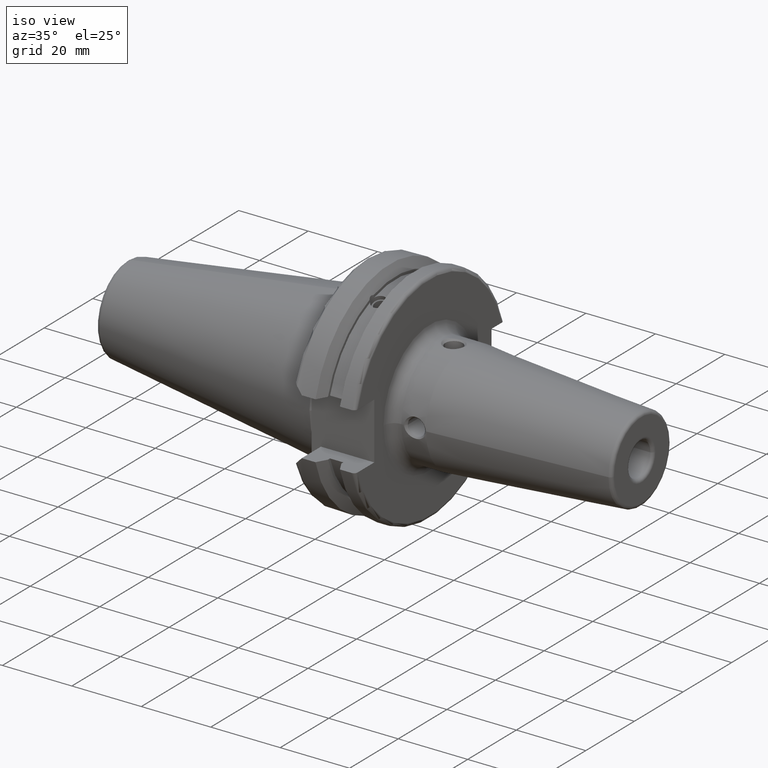
[diagram: clean part render]
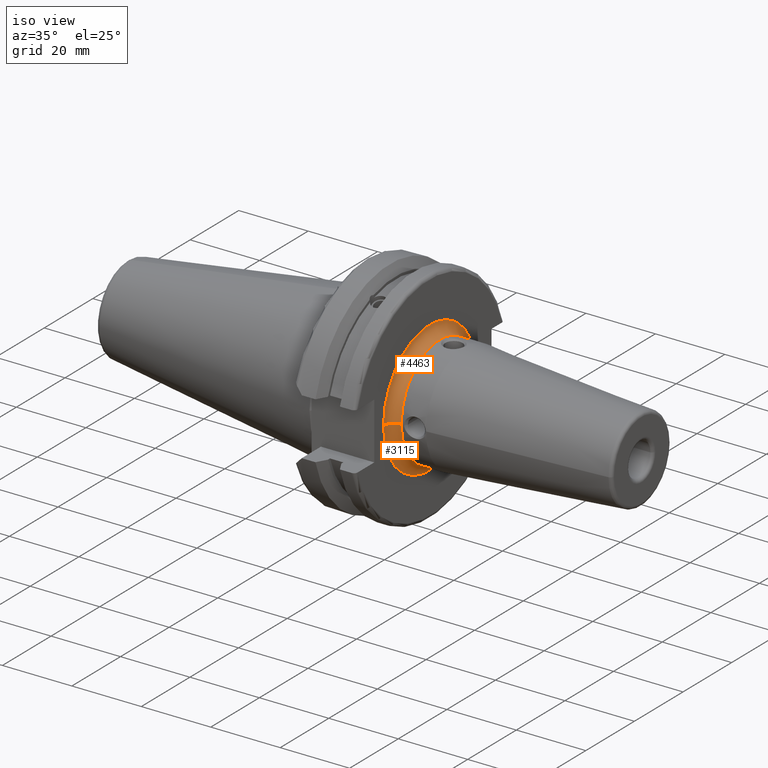
[diagram: same view with one multi-face feature highlighted, each face labeled with its STEP entity id]
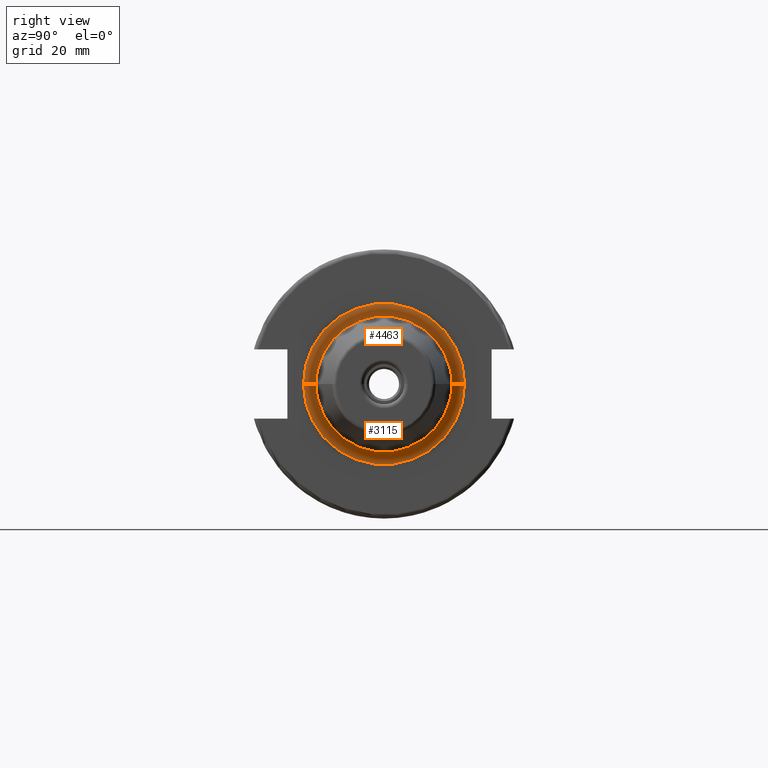
[diagram: same view with one multi-face feature highlighted, each face labeled with its STEP entity id]
A machine part, iso view. The highlighted faces form ONE feature: a constant-radius fillet chain: 2 tangent blend faces with common blend radius 2.9972 mm. The faces share edges in the B-rep.
A second angle (right view) of the same feature is appended — it is thin or edge-on in the first view.
Their STEP definitions:
[1] entity #3115 (Torus):
#387=CARTESIAN_POINT('',(8.68E-1,0.E0,0.E0));
#388=DIRECTION('',(1.E0,0.E0,0.E0));
#389=DIRECTION('',(0.E0,-1.E0,0.E0));
#390=AXIS2_PLACEMENT_3D('',#387,#388,#389);
#489=CARTESIAN_POINT('',(8.68E-1,-7.48E-1,3.101147810769E-13));
#490=DIRECTION('',(0.E0,-4.145919718646E-13,-1.E0));
#491=DIRECTION('',(-1.E0,7.649248466273E-13,0.E0));
#492=AXIS2_PLACEMENT_3D('',#489,#490,#491);
#518=CARTESIAN_POINT('',(7.5E-1,0.E0,0.E0));
#519=DIRECTION('',(1.E0,0.E0,0.E0));
#520=DIRECTION('',(0.E0,-1.E0,0.E0));
#521=AXIS2_PLACEMENT_3D('',#518,#519,#520);
#1864=CARTESIAN_POINT('',(8.68E-1,7.48E-1,-3.102084561446E-13));
#1865=DIRECTION('',(0.E0,4.147168719548E-13,1.E0));
#1866=DIRECTION('',(-1.E0,-7.639839796573E-13,0.E0));
#1867=AXIS2_PLACEMENT_3D('',#1864,#1865,#1866);
#2430=CARTESIAN_POINT('',(7.5E-1,-7.48E-1,0.E0));
#2431=CARTESIAN_POINT('',(7.5E-1,7.48E-1,0.E0));
#2432=VERTEX_POINT('',#2430);
#2433=VERTEX_POINT('',#2431);
#2434=CARTESIAN_POINT('',(8.68E-1,-6.3E-1,0.E0));
#2435=CARTESIAN_POINT('',(8.68E-1,6.3E-1,0.E0));
#2436=VERTEX_POINT('',#2434);
#2437=VERTEX_POINT('',#2435);
#3101=CARTESIAN_POINT('',(8.68E-1,0.E0,0.E0));
#3102=DIRECTION('',(1.E0,0.E0,0.E0));
#3103=DIRECTION('',(0.E0,-9.998619193445E-1,1.661752824022E-2));
#3104=AXIS2_PLACEMENT_3D('',#3101,#3102,#3103);
#3105=TOROIDAL_SURFACE('',#3104,7.48E-1,1.18E-1);
#3107=ORIENTED_EDGE('',*,*,#3106,.F.);
#3109=ORIENTED_EDGE('',*,*,#3108,.T.);
#3110=ORIENTED_EDGE('',*,*,#2997,.T.);
#3112=ORIENTED_EDGE('',*,*,#3111,.F.);
#3113=EDGE_LOOP('',(#3107,#3109,#3110,#3112));
#3114=FACE_OUTER_BOUND('',#3113,.F.);
#3115=ADVANCED_FACE('',(#3114),#3105,.F.);
#391=CIRCLE('',#390,6.3E-1);
#493=CIRCLE('',#492,1.18E-1);
#522=CIRCLE('',#521,7.48E-1);
#1868=CIRCLE('',#1867,1.18E-1);
#2997=EDGE_CURVE('',#2436,#2437,#391,.T.);
#3106=EDGE_CURVE('',#2432,#2433,#522,.T.);
#3108=EDGE_CURVE('',#2432,#2436,#493,.T.);
#3111=EDGE_CURVE('',#2433,#2437,#1868,.T.);
[2] entity #4463 (Torus):
#489=CARTESIAN_POINT('',(8.68E-1,-7.48E-1,3.101147810769E-13));
#490=DIRECTION('',(0.E0,-4.145919718646E-13,-1.E0));
#491=DIRECTION('',(-1.E0,7.649248466273E-13,0.E0));
#492=AXIS2_PLACEMENT_3D('',#489,#490,#491);
#523=CARTESIAN_POINT('',(7.5E-1,0.E0,0.E0));
#524=DIRECTION('',(1.E0,0.E0,0.E0));
#525=DIRECTION('',(0.E0,1.E0,0.E0));
#526=AXIS2_PLACEMENT_3D('',#523,#524,#525);
#1864=CARTESIAN_POINT('',(8.68E-1,7.48E-1,-3.102084561446E-13));
#1865=DIRECTION('',(0.E0,4.147168719548E-13,1.E0));
#1866=DIRECTION('',(-1.E0,-7.639839796573E-13,0.E0));
#1867=AXIS2_PLACEMENT_3D('',#1864,#1865,#1866);
#1903=CARTESIAN_POINT('',(8.68E-1,0.E0,0.E0));
#1904=DIRECTION('',(1.E0,0.E0,0.E0));
#1905=DIRECTION('',(0.E0,1.E0,0.E0));
#1906=AXIS2_PLACEMENT_3D('',#1903,#1904,#1905);
#2430=CARTESIAN_POINT('',(7.5E-1,-7.48E-1,0.E0));
#2431=CARTESIAN_POINT('',(7.5E-1,7.48E-1,0.E0));
#2432=VERTEX_POINT('',#2430);
#2433=VERTEX_POINT('',#2431);
#2434=CARTESIAN_POINT('',(8.68E-1,-6.3E-1,0.E0));
#2435=CARTESIAN_POINT('',(8.68E-1,6.3E-1,0.E0));
#2436=VERTEX_POINT('',#2434);
#2437=VERTEX_POINT('',#2435);
#4451=CARTESIAN_POINT('',(8.68E-1,0.E0,0.E0));
#4452=DIRECTION('',(1.E0,0.E0,0.E0));
#4453=DIRECTION('',(0.E0,9.998619193445E-1,-1.661752824022E-2));
#4454=AXIS2_PLACEMENT_3D('',#4451,#4452,#4453);
#4455=TOROIDAL_SURFACE('',#4454,7.48E-1,1.18E-1);
#4456=ORIENTED_EDGE('',*,*,#3140,.F.);
#4457=ORIENTED_EDGE('',*,*,#3111,.T.);
#4459=ORIENTED_EDGE('',*,*,#4458,.T.);
#4460=ORIENTED_EDGE('',*,*,#3108,.F.);
#4461=EDGE_LOOP('',(#4456,#4457,#4459,#4460));
#4462=FACE_OUTER_BOUND('',#4461,.F.);
#4463=ADVANCED_FACE('',(#4462),#4455,.F.);
#493=CIRCLE('',#492,1.18E-1);
#527=CIRCLE('',#526,7.48E-1);
#1868=CIRCLE('',#1867,1.18E-1);
#1907=CIRCLE('',#1906,6.3E-1);
#3108=EDGE_CURVE('',#2432,#2436,#493,.T.);
#3111=EDGE_CURVE('',#2433,#2437,#1868,.T.);
#3140=EDGE_CURVE('',#2433,#2432,#527,.T.);
#4458=EDGE_CURVE('',#2437,#2436,#1907,.T.);